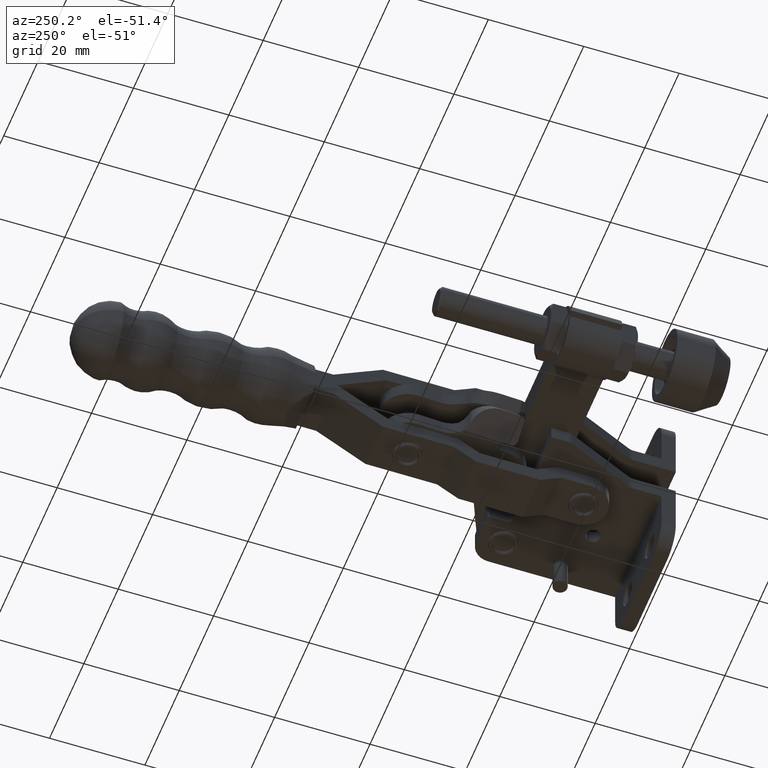
[diagram: clean part render]
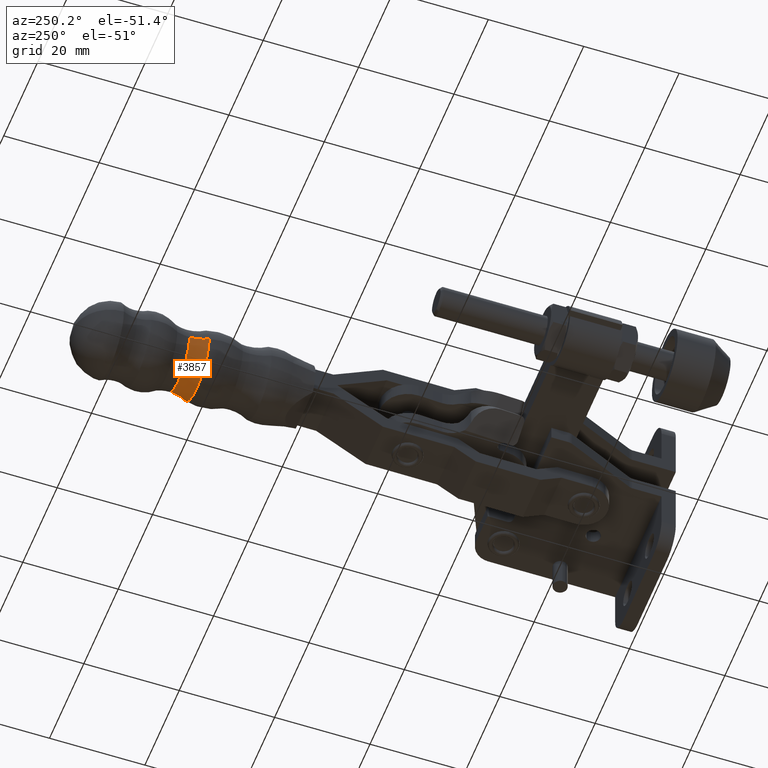
[diagram: same view with one face highlighted and labeled with its STEP entity id]
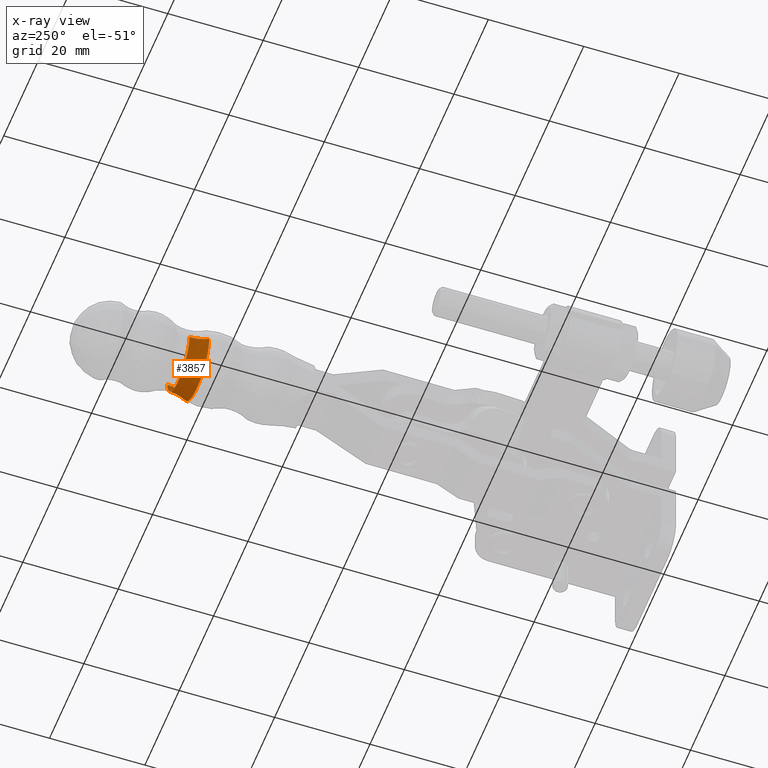
[diagram: x-ray of the same camera — body ghosted, the highlighted face saturated]
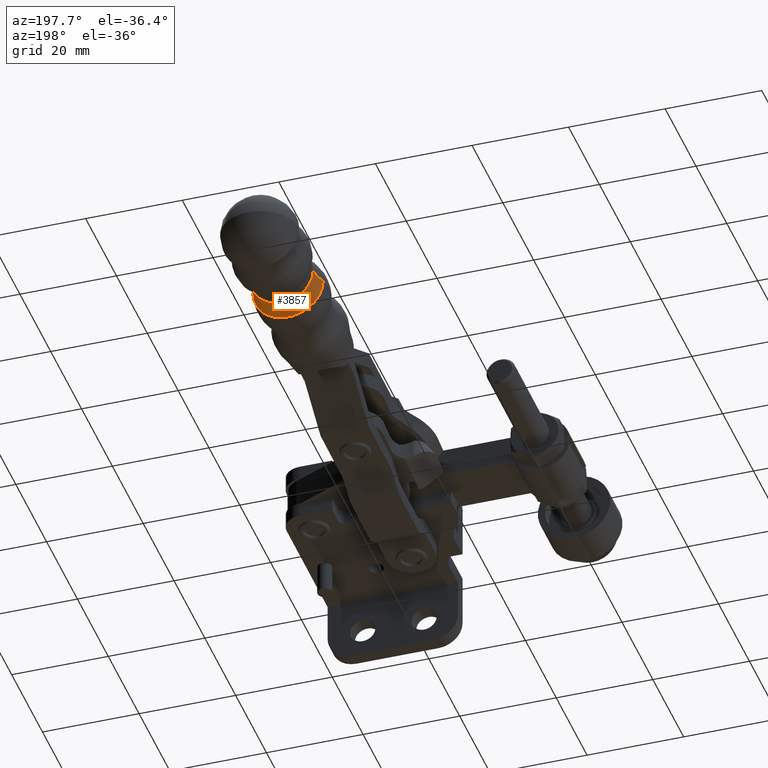
[diagram: same view with one face highlighted and labeled with its STEP entity id]
A machine part, auxiliary view. The second image highlights one B-rep face of the part: STEP entity #3857.
The next image is the same camera in x-ray: the body ghosted, the highlighted face saturated — about 0% of this face is hidden behind the body in this view.
A second angle (auxiliary view) of the same face is appended — the face is thin or edge-on in the first view.
In plain terms, the highlighted toroidal blend (fillet) surface has major radius 14.9271 mm and minor (blend) radius 8.5531 mm.
Its self-contained STEP definition (entity closure, byte-faithful):
#8 = CIRCLE ( 'NONE', #8301, 8.553090308906760700 ) ;
#432 = DIRECTION ( 'NONE',  ( 0.9999875988200824800, 0.004980181326596481000, 5.066949419895434000E-031 ) ) ;
#469 = VERTEX_POINT ( 'NONE', #10402 ) ;
#964 = VERTEX_POINT ( 'NONE', #4226 ) ;
#1032 = FACE_OUTER_BOUND ( 'NONE', #5054, .T. ) ;
#1052 = EDGE_CURVE ( 'NONE', #2542, #964, #8, .T. ) ;
#1590 = EDGE_CURVE ( 'NONE', #9090, #964, #9514, .T. ) ;
#2276 = CARTESIAN_POINT ( 'NONE',  ( -15.12677493758234700, 98.87966543689619000, -2.999999999999674900 ) ) ;
#2393 = ORIENTED_EDGE ( 'NONE', *, *, #9676, .T. ) ;
#2542 = VERTEX_POINT ( 'NONE', #2276 ) ;
#2675 = CARTESIAN_POINT ( 'NONE',  ( -28.78751832570475200, 102.6187358125900300, -2.999999999999659400 ) ) ;
#2904 = ORIENTED_EDGE ( 'NONE', *, *, #7331, .F. ) ;
#3700 = CARTESIAN_POINT ( 'NONE',  ( -22.39466095654659500, 98.84346959778959300, -2.999999999999674900 ) ) ;
#3857 = ADVANCED_FACE ( 'NONE', ( #1032 ), #4530, .F. ) ;
#4191 = CARTESIAN_POINT ( 'NONE',  ( -7.486739015114762800, 102.7248188715096800, -2.999999999999660300 ) ) ;
#4226 = CARTESIAN_POINT ( 'NONE',  ( -16.03972325560975400, 102.6822229308685600, -2.999999999999660300 ) ) ;
#4374 = CARTESIAN_POINT ( 'NONE',  ( -22.41362079065725500, 102.6504793717293000, -2.999999999999660300 ) ) ;
#4435 = DIRECTION ( 'NONE',  ( 1.417256024401658000E-016, -3.866584808529460500E-015, 1.000000000000000000 ) ) ;
#4497 = DIRECTION ( 'NONE',  ( 0.9999875988200824800, 0.004980181326596772400, 0.0000000000000000000 ) ) ;
#4530 = TOROIDAL_SURFACE ( 'NONE', #4643, 14.92706688878461700, 8.553090308906758900 ) ;
#4643 = AXIS2_PLACEMENT_3D ( 'NONE', #5987, #5220, #432 ) ;
#5054 = EDGE_LOOP ( 'NONE', ( #2393, #9727, #6550, #2904 ) ) ;
#5086 = CIRCLE ( 'NONE', #7778, 7.267976150444123800 ) ;
#5220 = DIRECTION ( 'NONE',  ( 0.004980181326596481800, -0.9999875988200825900, -3.867242677514357300E-015 ) ) ;
#5324 = DIRECTION ( 'NONE',  ( 0.9999875988200825900, 0.004980181326597464500, 0.0000000000000000000 ) ) ;
#5982 = AXIS2_PLACEMENT_3D ( 'NONE', #9274, #4435, #10103 ) ;
#5987 = CARTESIAN_POINT ( 'NONE',  ( -22.41362079065725500, 102.6504793717293000, -2.999999999999660300 ) ) ;
#6399 = DIRECTION ( 'NONE',  ( 0.0000000000000000000, 1.000000000000000000, 3.853548232647175800E-015 ) ) ;
#6550 = ORIENTED_EDGE ( 'NONE', *, *, #1052, .F. ) ;
#7266 = CIRCLE ( 'NONE', #5982, 8.553090308906760700 ) ;
#7331 = EDGE_CURVE ( 'NONE', #469, #2542, #5086, .T. ) ;
#7760 = DIRECTION ( 'NONE',  ( -1.926244123195963700E-017, 3.867194704841539500E-015, -1.000000000000000000 ) ) ;
#7778 = AXIS2_PLACEMENT_3D ( 'NONE', #3700, #9330, #4497 ) ;
#8301 = AXIS2_PLACEMENT_3D ( 'NONE', #4191, #7760, #6399 ) ;
#9090 = VERTEX_POINT ( 'NONE', #2675 ) ;
#9274 = CARTESIAN_POINT ( 'NONE',  ( -37.34050256619974600, 102.5761398719489300, -2.999999999999658500 ) ) ;
#9330 = DIRECTION ( 'NONE',  ( 0.004980181326596481800, -0.9999875988200825900, -3.867242677514357300E-015 ) ) ;
#9514 = CIRCLE ( 'NONE', #9557, 6.373976579877859400 ) ;
#9557 = AXIS2_PLACEMENT_3D ( 'NONE', #4374, #10272, #5324 ) ;
#9676 = EDGE_CURVE ( 'NONE', #469, #9090, #7266, .T. ) ;
#9727 = ORIENTED_EDGE ( 'NONE', *, *, #1590, .T. ) ;
#10103 = DIRECTION ( 'NONE',  ( 0.0000000000000000000, -1.000000000000000000, -3.853548232647175800E-015 ) ) ;
#10272 = DIRECTION ( 'NONE',  ( 0.004980181326596481800, -0.9999875988200825900, -3.867242677514357300E-015 ) ) ;
#10402 = CARTESIAN_POINT ( 'NONE',  ( -29.66254697551084300, 98.80727375868301000, -2.999999999999674000 ) ) ;